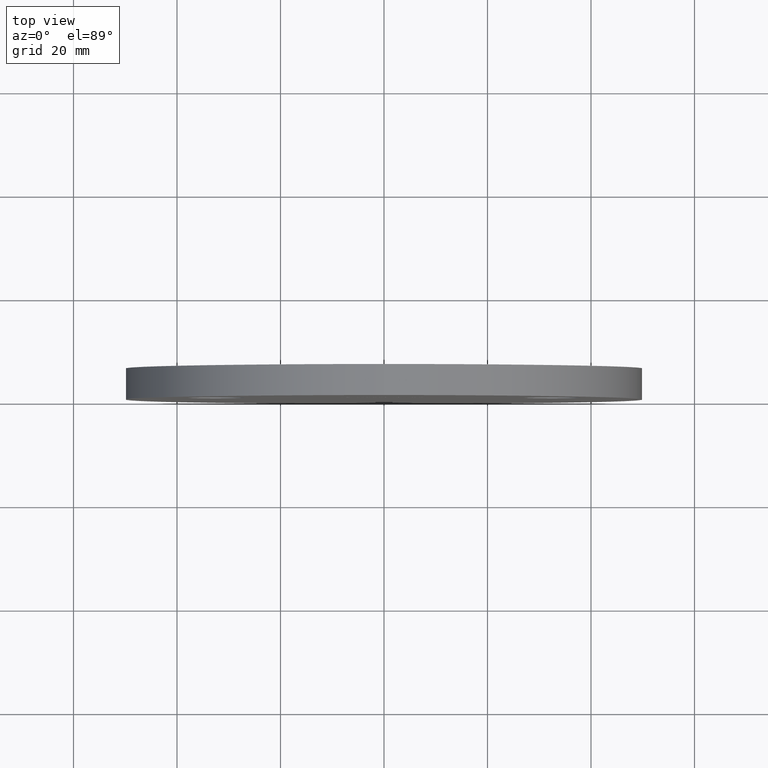
[diagram: clean part render]
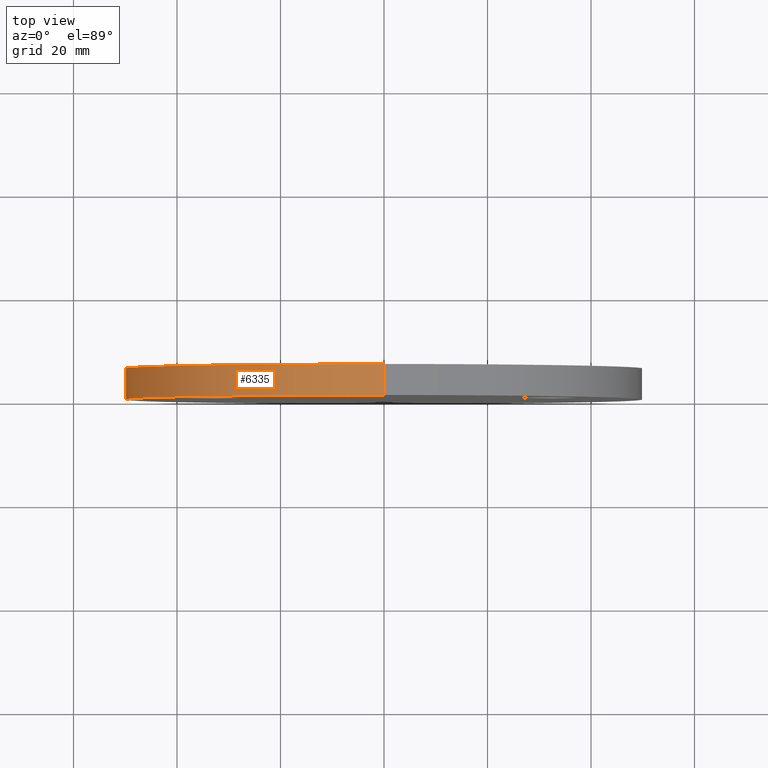
[diagram: same view with one face highlighted and labeled with its STEP entity id]
A machine part, top view. The second image highlights one B-rep face of the part: STEP entity #6335.
In plain terms, the highlighted cylindrical surface (partial cylindrical patch) has radius 50 mm, axis along (-0, -1, -0).
Its self-contained STEP definition (entity closure, byte-faithful):
#48 = FACE_OUTER_BOUND ( 'NONE', #10816, .T. ) ;
#97 = AXIS2_PLACEMENT_3D ( 'NONE', #3928, #9376, #6763 ) ;
#319 = ORIENTED_EDGE ( 'NONE', *, *, #10091, .T. ) ;
#572 = DIRECTION ( 'NONE',  ( -0.0000000000000000000, -1.000000000000000000, -0.0000000000000000000 ) ) ;
#609 = CARTESIAN_POINT ( 'NONE',  ( 0.0000000000000000000, 0.0000000000000000000, -50.00000000000000000 ) ) ;
#778 = AXIS2_PLACEMENT_3D ( 'NONE', #8682, #572, #6952 ) ;
#1144 = CARTESIAN_POINT ( 'NONE',  ( 6.123233995736766100E-015, 0.0000000000000000000, 50.00000000000000000 ) ) ;
#1238 = AXIS2_PLACEMENT_3D ( 'NONE', #9971, #9157, #2020 ) ;
#2020 = DIRECTION ( 'NONE',  ( 0.0000000000000000000, 0.0000000000000000000, 1.000000000000000000 ) ) ;
#2761 = CARTESIAN_POINT ( 'NONE',  ( 6.123233995736766100E-015, 6.000000000000000000, 50.00000000000000000 ) ) ;
#3556 = CIRCLE ( 'NONE', #97, 50.00000000000000000 ) ;
#3592 = VERTEX_POINT ( 'NONE', #2761 ) ;
#3830 = LINE ( 'NONE', #5863, #4407 ) ;
#3928 = CARTESIAN_POINT ( 'NONE',  ( 0.0000000000000000000, 0.0000000000000000000, 0.0000000000000000000 ) ) ;
#4178 = DIRECTION ( 'NONE',  ( -0.0000000000000000000, -1.000000000000000000, -0.0000000000000000000 ) ) ;
#4319 = CARTESIAN_POINT ( 'NONE',  ( 0.0000000000000000000, 6.000000000000000000, -50.00000000000000000 ) ) ;
#4407 = VECTOR ( 'NONE', #5217, 1000.000000000000000 ) ;
#4917 = EDGE_CURVE ( 'NONE', #6658, #3592, #7684, .T. ) ;
#5080 = ORIENTED_EDGE ( 'NONE', *, *, #10121, .F. ) ;
#5136 = CARTESIAN_POINT ( 'NONE',  ( 0.0000000000000000000, 6.000000000000000000, -50.00000000000000000 ) ) ;
#5217 = DIRECTION ( 'NONE',  ( -0.0000000000000000000, -1.000000000000000000, -0.0000000000000000000 ) ) ;
#5789 = VERTEX_POINT ( 'NONE', #1144 ) ;
#5863 = CARTESIAN_POINT ( 'NONE',  ( 6.123233995736766100E-015, 6.000000000000000000, 50.00000000000000000 ) ) ;
#6323 = VERTEX_POINT ( 'NONE', #609 ) ;
#6335 = ADVANCED_FACE ( 'NONE', ( #48 ), #11080, .T. ) ;
#6658 = VERTEX_POINT ( 'NONE', #4319 ) ;
#6763 = DIRECTION ( 'NONE',  ( 0.0000000000000000000, 0.0000000000000000000, 1.000000000000000000 ) ) ;
#6952 = DIRECTION ( 'NONE',  ( 0.0000000000000000000, 0.0000000000000000000, -1.000000000000000000 ) ) ;
#7635 = VECTOR ( 'NONE', #4178, 1000.000000000000000 ) ;
#7684 = CIRCLE ( 'NONE', #1238, 50.00000000000000000 ) ;
#8616 = EDGE_CURVE ( 'NONE', #6323, #5789, #3556, .T. ) ;
#8682 = CARTESIAN_POINT ( 'NONE',  ( 0.0000000000000000000, 6.000000000000000000, 0.0000000000000000000 ) ) ;
#9157 = DIRECTION ( 'NONE',  ( 0.0000000000000000000, 1.000000000000000000, 0.0000000000000000000 ) ) ;
#9376 = DIRECTION ( 'NONE',  ( 0.0000000000000000000, 1.000000000000000000, 0.0000000000000000000 ) ) ;
#9415 = ORIENTED_EDGE ( 'NONE', *, *, #8616, .T. ) ;
#9971 = CARTESIAN_POINT ( 'NONE',  ( 0.0000000000000000000, 6.000000000000000000, 0.0000000000000000000 ) ) ;
#10091 = EDGE_CURVE ( 'NONE', #6658, #6323, #10337, .T. ) ;
#10121 = EDGE_CURVE ( 'NONE', #3592, #5789, #3830, .T. ) ;
#10337 = LINE ( 'NONE', #5136, #7635 ) ;
#10816 = EDGE_LOOP ( 'NONE', ( #5080, #11655, #319, #9415 ) ) ;
#11080 = CYLINDRICAL_SURFACE ( 'NONE', #778, 50.00000000000000000 ) ;
#11655 = ORIENTED_EDGE ( 'NONE', *, *, #4917, .F. ) ;